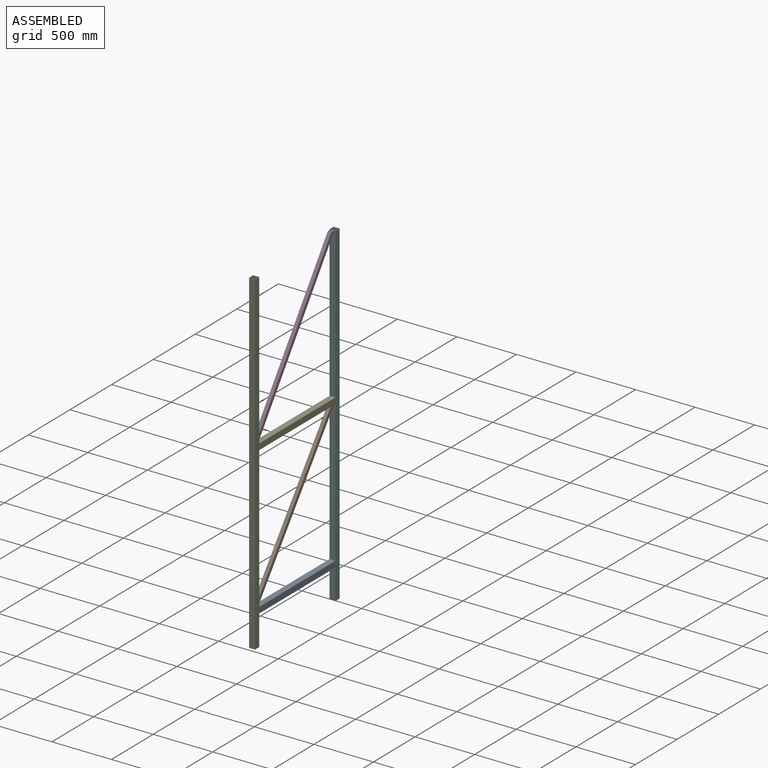
[diagram: assembled view]
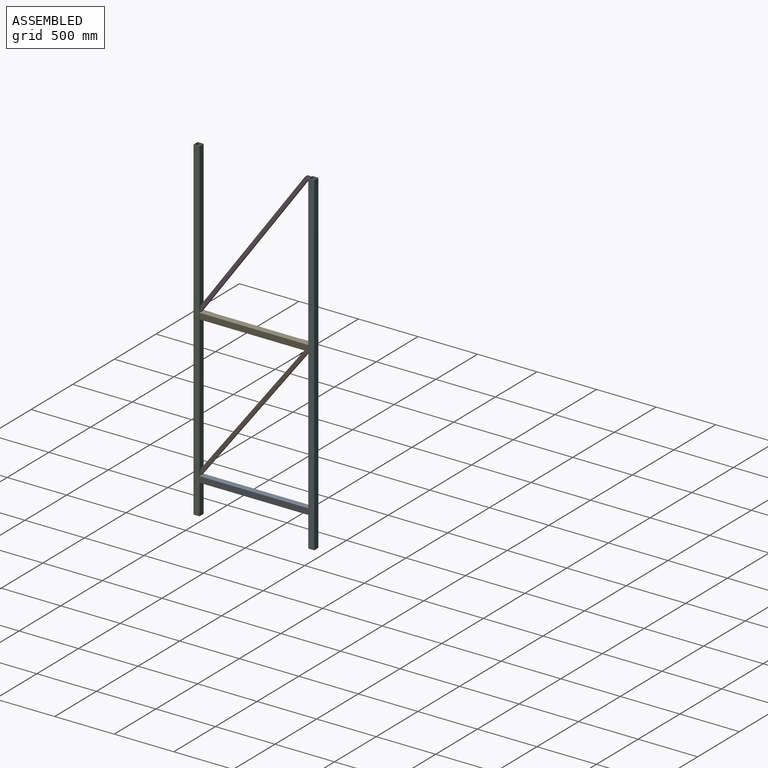
[diagram: assembled view, second angle]
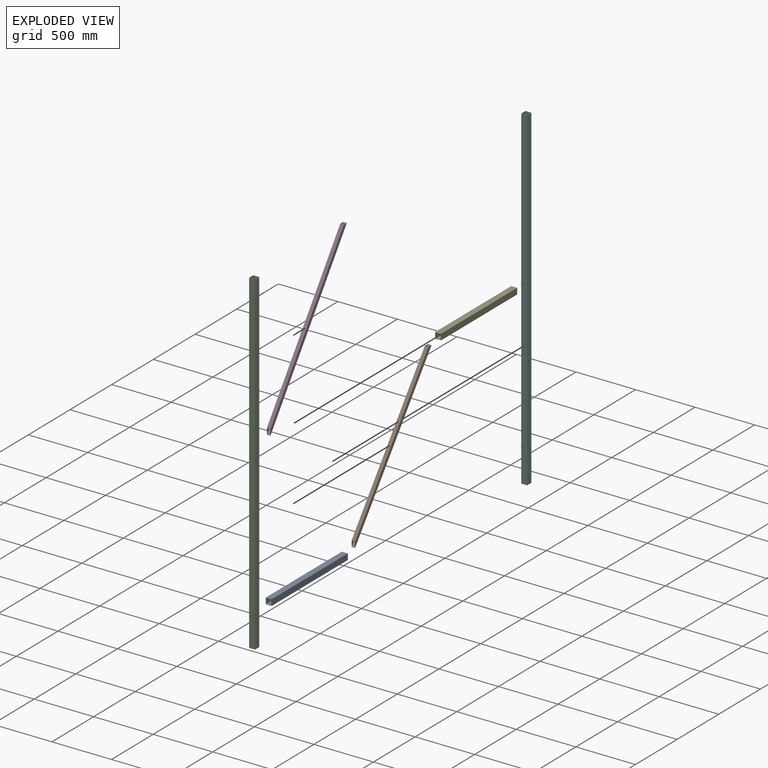
[diagram: exploded view]
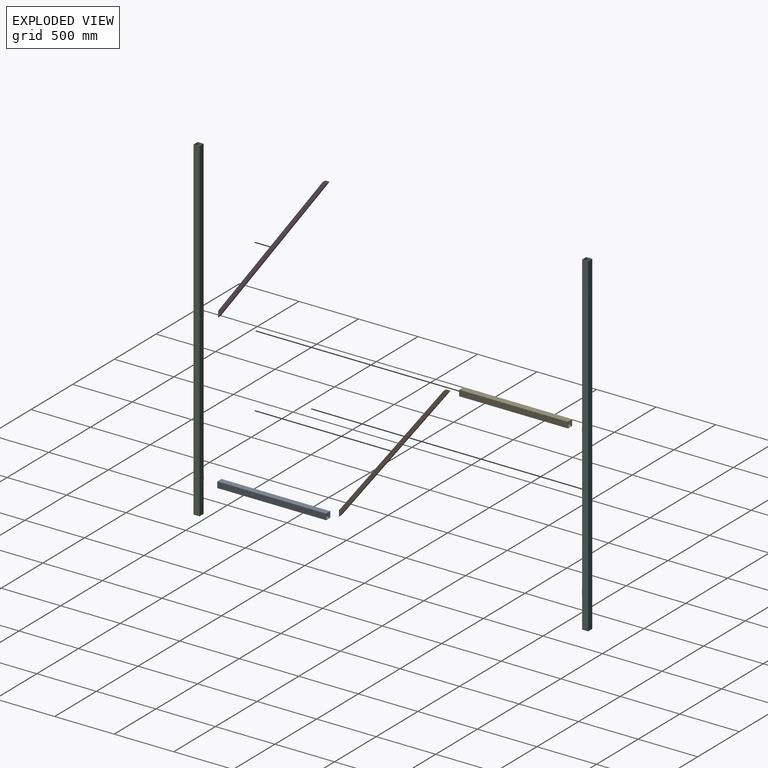
[diagram: exploded view, second angle]
ASSEMBLY  parts=6 mates=5
PART A: 10 faces, bbox 50x50x914 mm
  f0: plane 914x44mm, normal (0,-1,0), area 40216mm2, adj f1,f7,f8,f9
  f1: plane 914x44mm, normal (-1,0,0), area 40216mm2, adj f0,f2,f8,f9
  f2: plane 914x44mm, normal (0,1,0), area 40216mm2, adj f1,f7,f8,f9
  f3: plane 914x50mm, normal (-1,0,0), area 45700mm2, adj f4,f6,f8,f9
  f4: plane 914x50mm, normal (0,-1,0), area 45700mm2, adj f3,f5,f8,f9
  f5: plane 914x50mm, normal (1,0,0), area 45700mm2, adj f4,f6,f8,f9
  f6: plane 914x50mm, normal (0,1,0), area 45700mm2, adj f3,f5,f8,f9
  f7: plane 914x44mm, normal (1,0,0), area 40216mm2, adj f0,f2,f8,f9
  f8: plane 50x50mm, normal (0,0,1), area 564mm2, adj f0,f1,f2,f3,f4,f5,f6,f7
  f9: plane 50x50mm, normal (0,0,-1), area 564mm2, adj f0,f1,f2,f3,f4,f5,f6,f7
PART B: 10 faces, bbox 30x1501.7x30 mm
  f0: plane 1443.79x26mm, normal (0,0,-1), area 37538.5mm2, adj f1,f7,f8,f9
  f1: plane 1497.58x26mm, normal (-1,0,0), area 38237.8mm2, adj f0,f2,f8,f9
  f2: plane 1497.58x26mm, normal (0,0,1), area 38937.1mm2, adj f1,f7,f8,f9
  f3: plane 1501.72x30mm, normal (-1,0,0), area 44120.5mm2, adj f4,f6,f8,f9
  f4: plane 1501.72x30mm, normal (0,0,-1), area 45051.5mm2, adj f3,f5,f8,f9
  f5: plane 1501.72x30mm, normal (1,0,0), area 44120.5mm2, adj f4,f6,f8,f9
  f6: plane 1439.65x30mm, normal (0,0,1), area 43189.5mm2, adj f3,f5,f8,f9
  f7: plane 1497.58x26mm, normal (1,0,0), area 38237.8mm2, adj f0,f2,f8,f9
  f8: plane 30x30mm, normal (0,0.79,0.61), area 282.7mm2, adj f0,f1,f2,f3,f4,f5,f6,f7
  f9: plane 38.97x30mm, normal (0,-0.61,0.79), area 367.2mm2, adj f0,f1,f2,f3,f4,f5,f6,f7
PART C: 32 faces, bbox 51x50.2x2810 mm
  f0: plane 1265x50mm, normal (-1,0,0), area 63250mm2, adj f6,f8,f10,f27
  f1: plane 1190x50mm, normal (-1,0,0), area 59500mm2, adj f6,f8,f14,f25
  f2: plane 2810x44mm, normal (0,-1,0), area 123640mm2, adj f3,f9,f10,f11
  f3: plane 2810x44mm, normal (-1,0,0), area 123640mm2, adj f2,f4,f10,f11
  f4: plane 2810x44mm, normal (0,1,0), area 123640mm2, adj f3,f9,f10,f11
  f5: plane 255x50mm, normal (-1,0,0), area 12750mm2, adj f6,f8,f11,f12
  f6: plane 2810x51mm, normal (0,-1,0), area 140600mm2, adj f0,f1,f5,f7,f10,f11,f12,f14
  f7: plane 2810x50mm, normal (1,0,0), area 140500mm2, adj f6,f8,f10,f11
  f8: plane 2810x50mm, normal (0,1,0), area 140500mm2, adj f0,f1,f5,f7,f10,f11,f20,f30
  f9: plane 2810x44mm, normal (1,0,0), area 123640mm2, adj f2,f4,f10,f11
  f10: plane 50x50mm, normal (0,0,1), area 564mm2, adj f0,f2,f3,f4,f6,f7,f8,f9
  f11: plane 50x50mm, normal (0,0,-1), area 564mm2, adj f2,f3,f4,f5,f6,f7,f8,f9
  f12: plane 50.15x1mm, normal (0,0,-1), area 50.2mm2, adj f5,f6,f13,f19,f20
  f13: plane 50x1mm, normal (0,1,0), area 50mm2, adj f12,f14,f19,f20
  f14: plane 50.15x1mm, normal (0,0,1), area 50.2mm2, adj f1,f6,f13,f19,f20
  f15: plane 44x1mm, normal (0,-1,0), area 44mm2, adj f16,f18,f19,f21
  f16: plane 44x1mm, normal (0,0,1), area 44mm2, adj f15,f17,f19,f21
  f17: plane 44x1mm, normal (0,1,0), area 44mm2, adj f16,f18,f19,f21
  f18: plane 44x1mm, normal (0,0,-1), area 44mm2, adj f15,f17,f19,f21
  f19: plane 50.15x50mm, normal (-1,0,0), area 571.5mm2, adj f6,f12,f13,f14,f15,f16,f17,f18
  f20: plane 50x0.15mm, normal (1,0,0), area 7.5mm2, adj f8,f12,f13,f14
  f21: plane 44x44mm, normal (-1,0,0), area 1936mm2, adj f15,f16,f17,f18
  f22: plane 44x1mm, normal (0,0,-1), area 44mm2, adj f23,f28,f29,f31
  f23: plane 44x1mm, normal (0,-1,0), area 44mm2, adj f22,f24,f29,f31
  f24: plane 44x1mm, normal (0,0,1), area 44mm2, adj f23,f28,f29,f31
  f25: plane 50.15x1mm, normal (0,0,-1), area 50.2mm2, adj f1,f6,f26,f29,f30
  f26: plane 50x1mm, normal (0,1,0), area 50mm2, adj f25,f27,f29,f30
  f27: plane 50.15x1mm, normal (0,0,1), area 50.2mm2, adj f0,f6,f26,f29,f30
  f28: plane 44x1mm, normal (0,1,0), area 44mm2, adj f22,f24,f29,f31
  f29: plane 50.15x50mm, normal (-1,0,0), area 571.5mm2, adj f6,f22,f23,f24,f25,f26,f27,f28
  f30: plane 50x0.15mm, normal (1,0,0), area 7.5mm2, adj f8,f25,f26,f27
  f31: plane 44x44mm, normal (-1,0,0), area 1936mm2, adj f22,f23,f24,f28
PART D: 10 faces, bbox 30x1561.8x30 mm
  f0: plane 1502.88x26mm, normal (0,0,-1), area 39074.8mm2, adj f1,f7,f8,f9
  f1: plane 1557.61x26mm, normal (-1,0,0), area 39786.3mm2, adj f0,f2,f8,f9
  f2: plane 1557.61x26mm, normal (0,0,1), area 40497.8mm2, adj f1,f7,f8,f9
  f3: plane 1561.82x30mm, normal (-1,0,0), area 45907.3mm2, adj f4,f6,f8,f9
  f4: plane 1561.82x30mm, normal (0,0,-1), area 46854.6mm2, adj f3,f5,f8,f9
  f5: plane 1561.82x30mm, normal (1,0,0), area 45907.3mm2, adj f4,f6,f8,f9
  f6: plane 1498.67x30mm, normal (0,0,1), area 44960mm2, adj f3,f5,f8,f9
  f7: plane 1557.61x26mm, normal (1,0,0), area 39786.3mm2, adj f0,f2,f8,f9
  f8: plane 30x30mm, normal (0,0.81,0.59), area 276.6mm2, adj f0,f1,f2,f3,f4,f5,f6,f7
  f9: plane 41.43x30mm, normal (0,-0.59,0.81), area 381.9mm2, adj f0,f1,f2,f3,f4,f5,f6,f7
PART E: same geometry as A
PART F: same geometry as C
PLACE A rot(axis=(-1,0,0),90deg) t=(-1211.38,2.57,-35.41)mm
PLACE B rot(axis=(1,0,0),52.4deg) t=(-1201.38,918.57,1154.59)mm
PLACE C rot(axis=(0,0,-1),90deg) t=(-1211.38,2.57,-340.41)mm
PLACE D rot(axis=(1,0,0),54.1deg) t=(-1201.38,918.57,2469.59)mm
PLACE E rot(axis=(-1,0,0),90deg) t=(-1211.38,2.57,1204.59)mm
PLACE F rot(axis=(0,0,1),90deg) t=(-1161.38,916.57,-340.41)mm
MATE fastened B.f9 <-> C.f1  axis (0,-1,0) through (-1186.38,2.57,-35.41)mm
MATE fastened D.f9 <-> C.f0  axis (0,-1,0) through (-1186.38,2.57,1204.59)mm
MATE fastened A.f9 <-> C.f21  axis (0,1,0) through (-1164.38,2.57,-82.41)mm
MATE fastened F.f21 <-> A.f8  axis (0,-1,0) through (-1164.38,916.57,-82.41)mm
MATE fastened E.f9 <-> C.f31  axis (0,1,0) through (-1164.38,2.57,1157.59)mm
